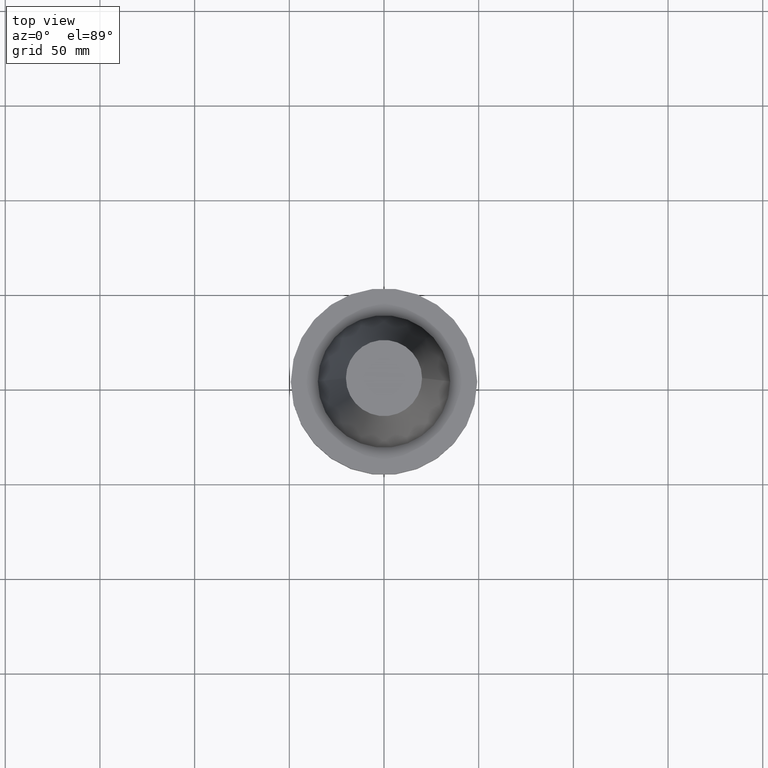
[diagram: clean part render]
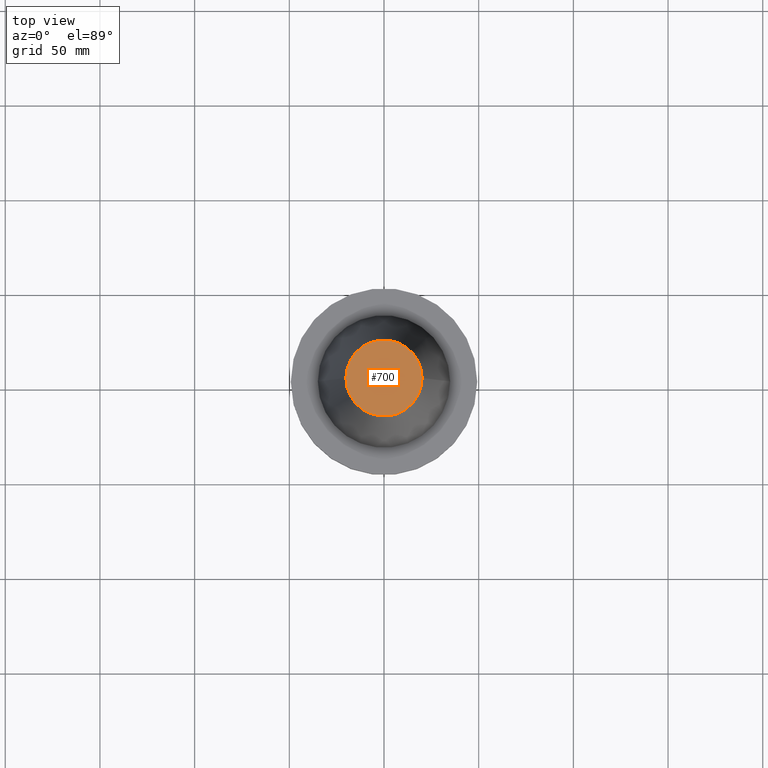
[diagram: same view with one face highlighted and labeled with its STEP entity id]
A machine part, top view. The second image highlights one B-rep face of the part: STEP entity #700.
In plain terms, the highlighted planar face has unit normal (0, 0, -1).
Its self-contained STEP definition (entity closure, byte-faithful):
#50 = ORIENTED_EDGE ( 'NONE', *, *, #98, .T. ) ;
#65 = CARTESIAN_POINT ( 'NONE',  ( 0.000000000000000000, 0.000000000000000000, 101.5999999999999801 ) ) ;
#87 = CIRCLE ( 'NONE', #513, 20.10819343178871321 ) ;
#98 = EDGE_CURVE ( 'NONE', #712, #311, #87, .T. ) ;
#122 = AXIS2_PLACEMENT_3D ( 'NONE', #65, #585, #678 ) ;
#184 = FACE_OUTER_BOUND ( 'NONE', #189, .T. ) ;
#189 = EDGE_LOOP ( 'NONE', ( #50, #703 ) ) ;
#192 = EDGE_CURVE ( 'NONE', #311, #712, #953, .T. ) ;
#268 = DIRECTION ( 'NONE',  ( -1.000000000000000000, 0.000000000000000000, -0.000000000000000000 ) ) ;
#278 = CARTESIAN_POINT ( 'NONE',  ( -20.10819343178871321, 0.000000000000000000, 101.5999999999999801 ) ) ;
#311 = VERTEX_POINT ( 'NONE', #998 ) ;
#440 = CARTESIAN_POINT ( 'NONE',  ( 0.000000000000000000, 0.000000000000000000, 101.5999999999999801 ) ) ;
#513 = AXIS2_PLACEMENT_3D ( 'NONE', #440, #521, #515 ) ;
#515 = DIRECTION ( 'NONE',  ( 1.000000000000000000, 0.000000000000000000, 0.000000000000000000 ) ) ;
#521 = DIRECTION ( 'NONE',  ( -0.000000000000000000, -0.000000000000000000, 1.000000000000000000 ) ) ;
#534 = DIRECTION ( 'NONE',  ( 0.000000000000000000, 0.000000000000000000, -1.000000000000000000 ) ) ;
#585 = DIRECTION ( 'NONE',  ( -0.000000000000000000, -0.000000000000000000, 1.000000000000000000 ) ) ;
#678 = DIRECTION ( 'NONE',  ( 1.000000000000000000, 0.000000000000000000, 0.000000000000000000 ) ) ;
#700 = ADVANCED_FACE ( 'NONE', ( #184 ), #865, .F. ) ;
#703 = ORIENTED_EDGE ( 'NONE', *, *, #192, .T. ) ;
#712 = VERTEX_POINT ( 'NONE', #278 ) ;
#767 = AXIS2_PLACEMENT_3D ( 'NONE', #950, #534, #268 ) ;
#865 = PLANE ( 'NONE',  #767 ) ;
#950 = CARTESIAN_POINT ( 'NONE',  ( 0.000000000000000000, 20.10819343178871321, 101.5999999999999943 ) ) ;
#953 = CIRCLE ( 'NONE', #122, 20.10819343178871321 ) ;
#998 = CARTESIAN_POINT ( 'NONE',  ( 20.10819343178871321, 3.369811209154858606E-15, 101.5999999999999801 ) ) ;